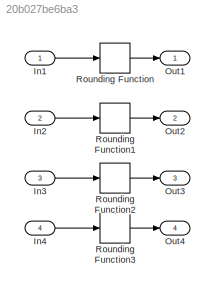
MODEL slx_20b027be6ba3
KIND model
CONFIG AbsTol = auto
CONFIG EnableMultiTasking = on
CONFIG FixedStep = 0.1
CONFIG MaxStep = auto
CONFIG MinStep = auto
CONFIG RelTol = 1e-3
CONFIG SampleTimeConstraint = Unconstrained
CONFIG Solver = FixedStepAuto
CONFIG SolverName = FixedStepAuto
CONFIG StartTime = 0.0
CONFIG StopTime = 10.0
BLOCK [Inport] In1
  IconDisplay = Port number
BLOCK [Inport] In2
  IconDisplay = Port number
  Port = 2
BLOCK [Inport] In3
  IconDisplay = Port number
  Port = 3
BLOCK [Inport] In4
  IconDisplay = Port number
  Port = 4
BLOCK [Outport] Out1
  IconDisplay = Port number
BLOCK [Outport] Out2
  IconDisplay = Port number
  Port = 2
BLOCK [Outport] Out3
  IconDisplay = Port number
  Port = 3
BLOCK [Outport] Out4
  IconDisplay = Port number
  Port = 4
BLOCK [Rounding] Rounding Function
BLOCK [Rounding] Rounding Function1
  Operator = ceil
BLOCK [Rounding] Rounding Function2
  Operator = round
BLOCK [Rounding] Rounding Function3
  Operator = fix
LINE In1:1 -> Rounding Function:1
LINE In2:1 -> Rounding Function1:1
LINE In3:1 -> Rounding Function2:1
LINE In4:1 -> Rounding Function3:1
LINE Rounding Function1:1 -> Out2:1
LINE Rounding Function2:1 -> Out3:1
LINE Rounding Function3:1 -> Out4:1
LINE Rounding Function:1 -> Out1:1
